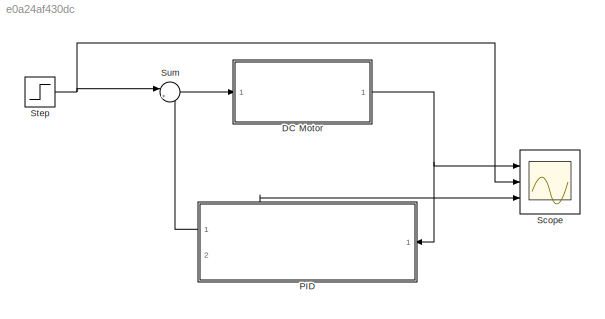
MODEL slx_e0a24af430dc
KIND model
CONFIG AbsTol = auto
CONFIG EnableMultiTasking = off
CONFIG FixedStep = auto
CONFIG MaxStep = auto
CONFIG MinStep = auto
CONFIG RelTol = 1e-3
CONFIG SampleTimeConstraint = Unconstrained
CONFIG SolverName = ode45
CONFIG StartTime = 0.0
CONFIG StopTime = 5
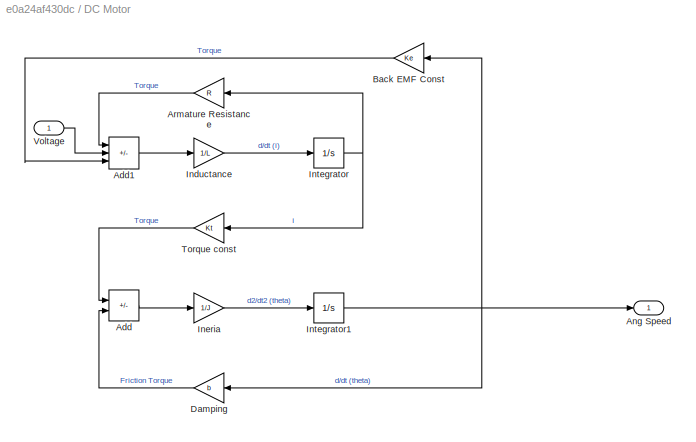
BLOCK [SubSystem] DC Motor
  Ports = [1, 1]
  RequestExecContextInheritance = off
BLOCK [Sum] DC Motor/Add
  IconShape = rectangular
  Inputs = +-
  Ports = [2, 1]
BLOCK [Sum] DC Motor/Add1
  IconShape = rectangular
  Inputs = -+-
  Ports = [3, 1]
BLOCK [Outport] DC Motor/Ang Speed
BLOCK [Gain] DC Motor/Armature Resistance
  Gain = R
BLOCK [Gain] DC Motor/Back EMF Const
  Gain = Ke
BLOCK [Gain] DC Motor/Damping
  Gain = b
BLOCK [Gain] DC Motor/Inductance
  Gain = 1/L
BLOCK [Gain] DC Motor/Ineria
  Gain = 1/J
BLOCK [Integrator] DC Motor/Integrator
  Ports = [1, 1]
BLOCK [Integrator] DC Motor/Integrator1
  Ports = [1, 1]
BLOCK [Gain] DC Motor/Torque const
  Gain = Kt
BLOCK [Inport] DC Motor/Voltage
BLOCK [ModelReference] PID
  ModelNameDialog = PID_28Nov_Mod.slx
  ModelReferenceVersion = 1.11
  PortSchema = {"entries":[{"content":{"sides":[{"content":{"connectorIds":["In1","Out2"]},"type":"ConnectorPlacement.EquallySpacedRectSide","uuid":"ad25bb13-e720-4a00-b2f1-361fba6a337d"},{"content":{"connectorIds":["Out1"],"side":"RIGHT"},"type":"ConnectorPlacement.EquallySpacedRectSide","uuid":"640f5347-1387-4770-be32-b13457e3f63e"},{"content":{"connectorIds":[],"side":"TOP"},"type":"ConnectorPlacement.Equally...<+247ch>
  Ports = [1, 2]
BLOCK [Scope] Scope
  Floating = off
  NumInputPorts = 3
  Ports = [3]
  ScopeSpecificationString = Simulink.scopes.TimeScopeBlockCfg('CurrentConfiguration', extmgr.ConfigurationSet(extmgr.Configuration('Core','General UI',true),extmgr.Configuration('Core','Source UI',true),extmgr.Configuration('Sources','WiredSimulink',true,'DataLoggingVariableName','ScopeData1'),extmgr.Configuration('Visuals','Time Domain',true,'SerializedDisplays',{struct('MinYLimReal','-8.86457','MaxYLimReal','79.78114','YLa...<+3154ch>
BLOCK [Step] Step
  After = V
  SampleTime = 0
  Time = 0
BLOCK [Sum] Sum
  Inputs = |++
  Ports = [2, 1]
LINE DC Motor/Add1:1 -> DC Motor/Inductance:1
LINE DC Motor/Add:1 -> DC Motor/Ineria:1
LINE DC Motor/Armature Resistance:1 -> DC Motor/Add1:1
LINE DC Motor/Back EMF Const:1 -> DC Motor/Add1:3
LINE DC Motor/Damping:1 -> DC Motor/Add:2
LINE DC Motor/Inductance:1 -> DC Motor/Integrator:1
LINE DC Motor/Ineria:1 -> DC Motor/Integrator1:1
NET DC Motor/Integrator1:1 -> DC Motor/Ang Speed:1, DC Motor/Back EMF Const:1, DC Motor/Damping:1
NET DC Motor/Integrator:1 -> DC Motor/Armature Resistance:1, DC Motor/Torque const:1
LINE DC Motor/Torque const:1 -> DC Motor/Add:1
LINE DC Motor/Voltage:1 -> DC Motor/Add1:2
NET DC Motor:1 -> PID:1, Scope:1
LINE PID:1 -> Sum:2
LINE PID:2 -> Scope:3
NET Step:1 -> Scope:2, Sum:1
LINE Sum:1 -> DC Motor:1
note: NET lines group one-source signal fan-out (src -> all destinations, sorted); 1:1 wires keep LINE
